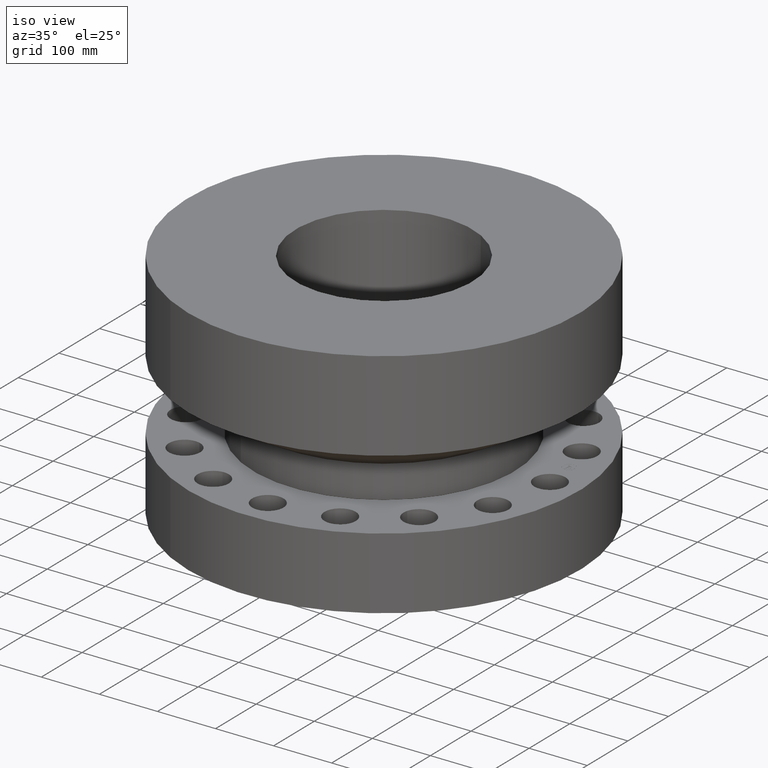
[diagram: clean part render]
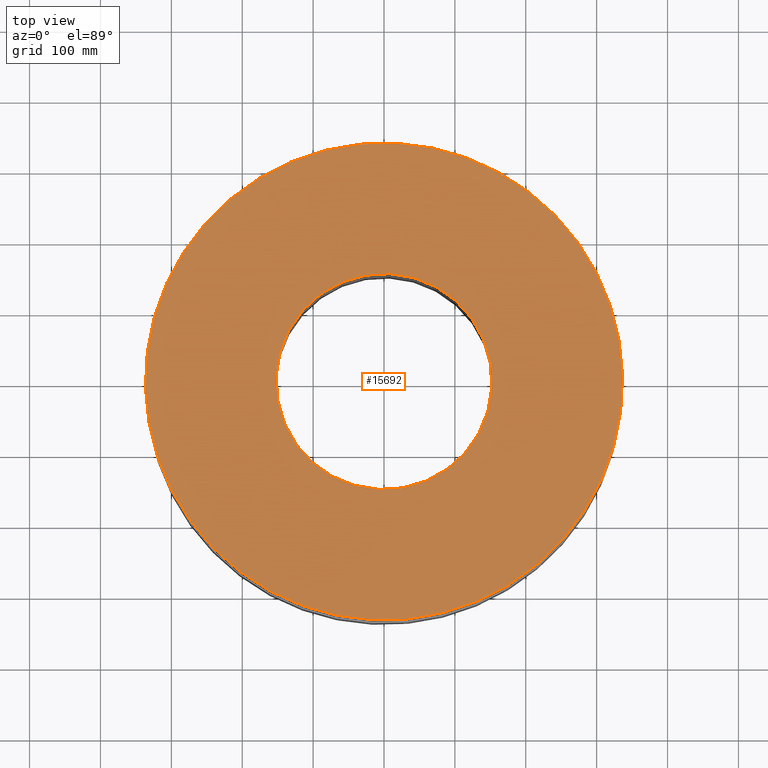
[diagram: tour spotlight — one face highlighted and labeled with its STEP entity id]
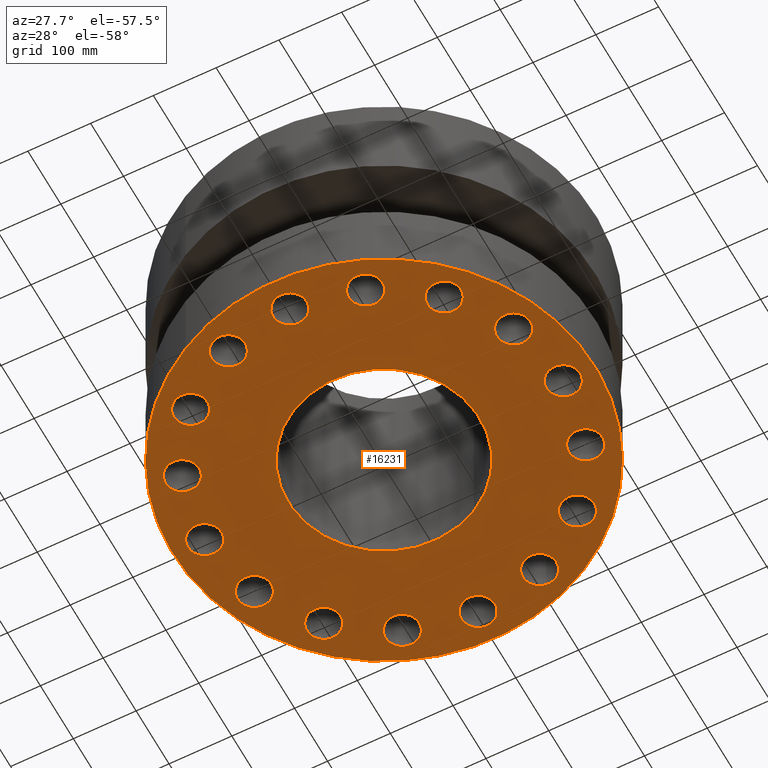
[diagram: tour spotlight — one face highlighted and labeled with its STEP entity id]
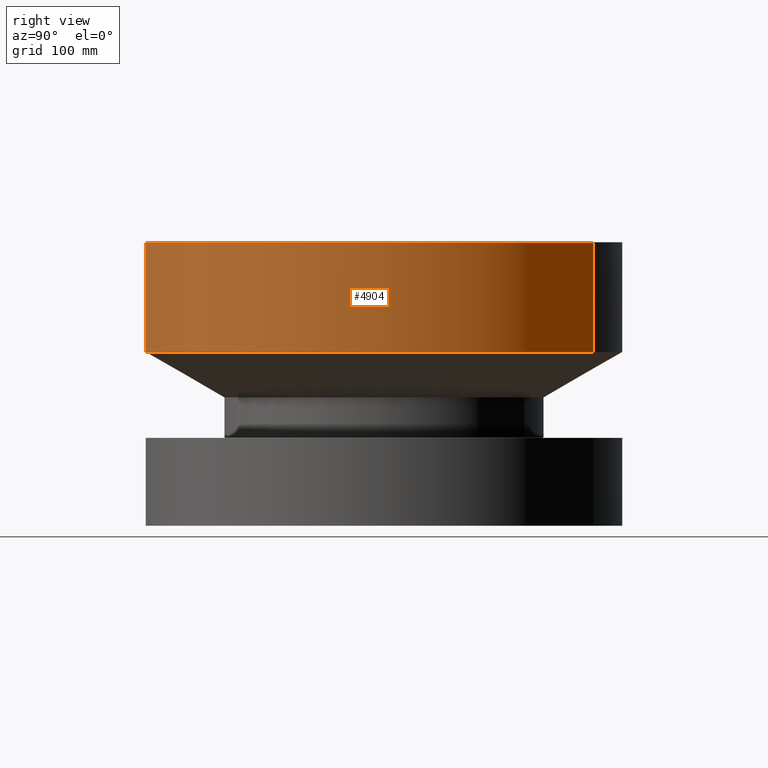
[diagram: tour spotlight — one face highlighted and labeled with its STEP entity id]
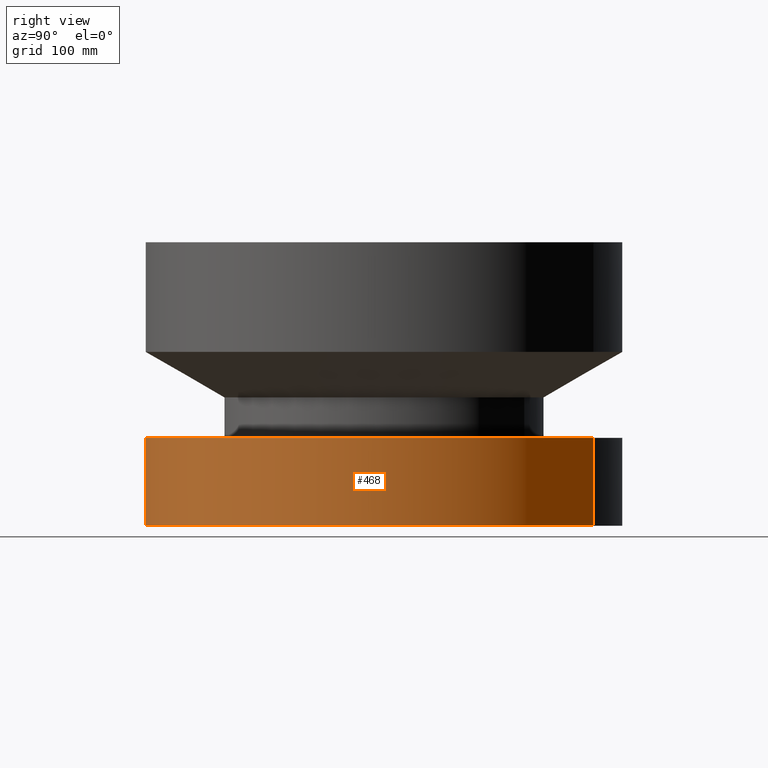
[diagram: tour spotlight — one face highlighted and labeled with its STEP entity id]
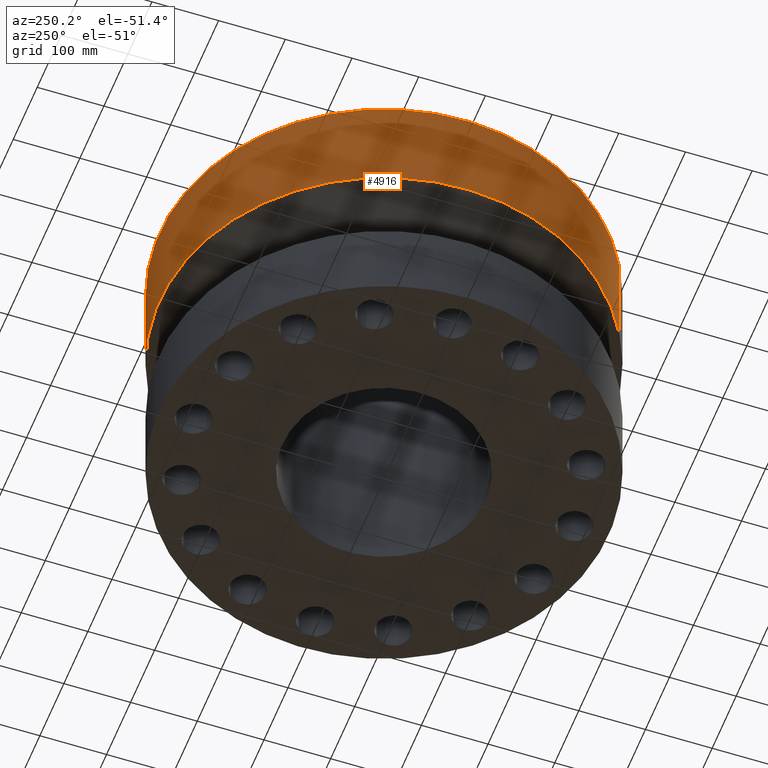
[diagram: tour spotlight — one face highlighted and labeled with its STEP entity id]
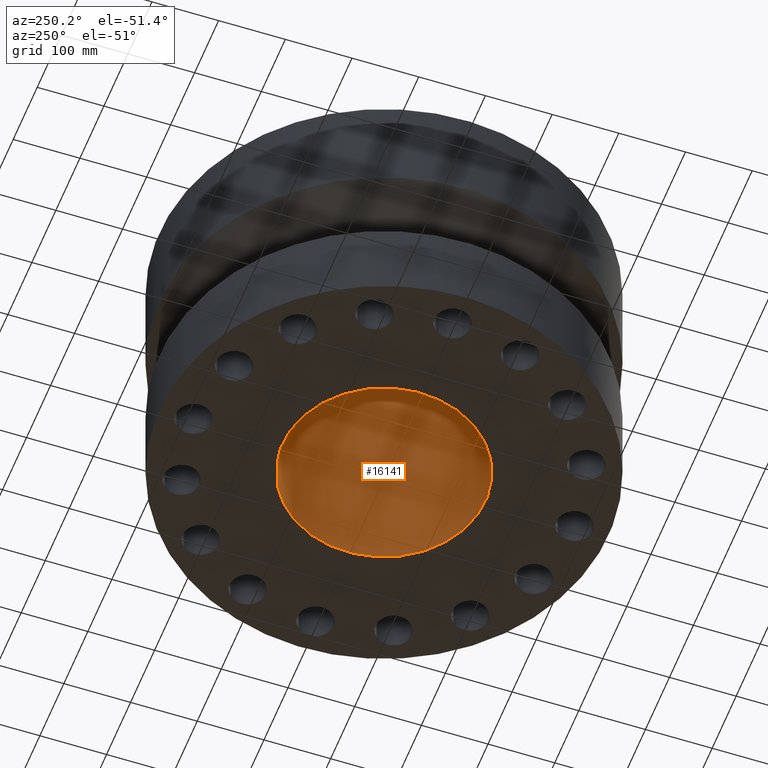
[diagram: tour spotlight — one face highlighted and labeled with its STEP entity id]
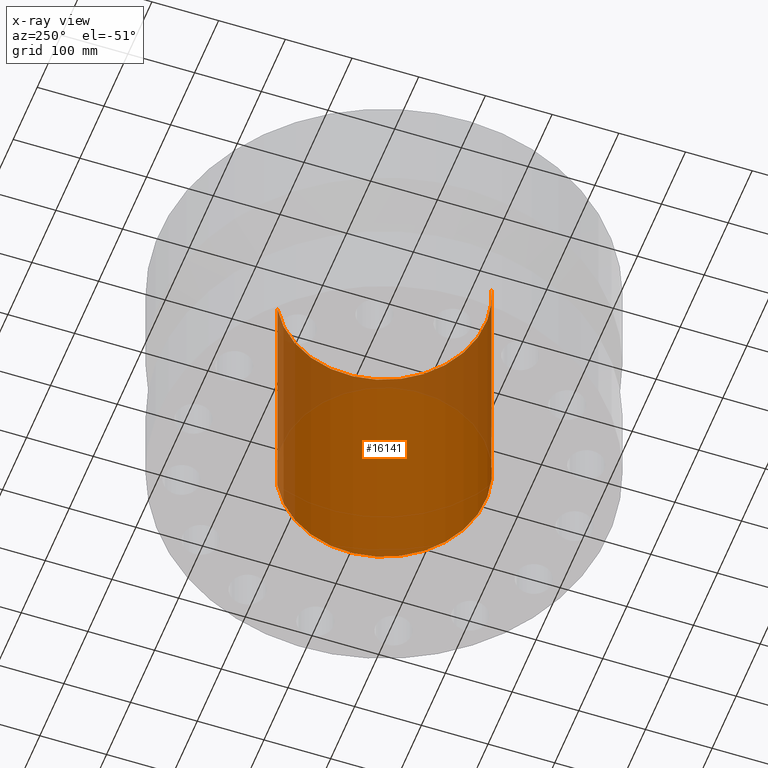
[diagram: x-ray of the same camera — body ghosted, this tour face saturated]
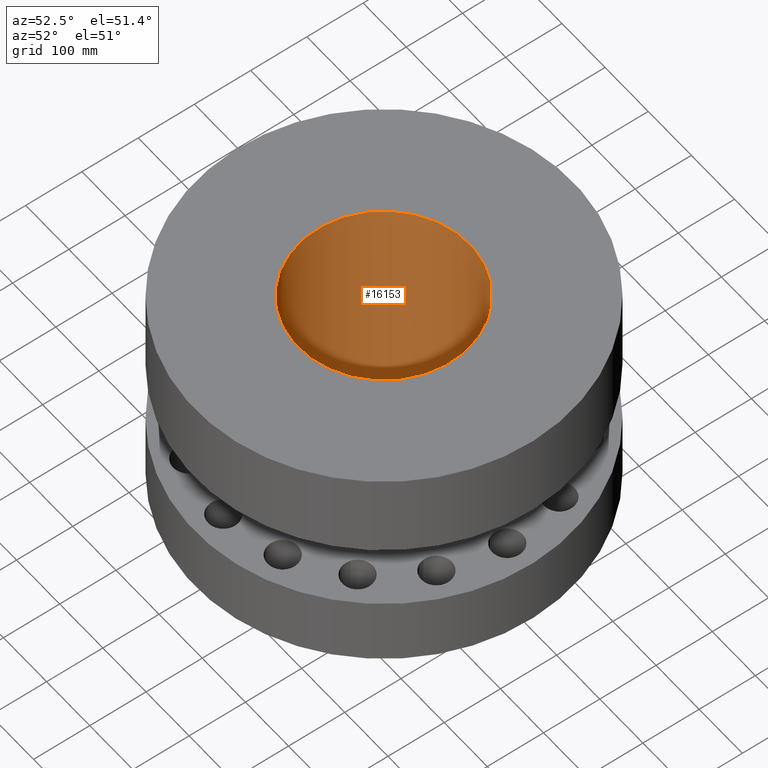
[diagram: tour spotlight — one face highlighted and labeled with its STEP entity id]
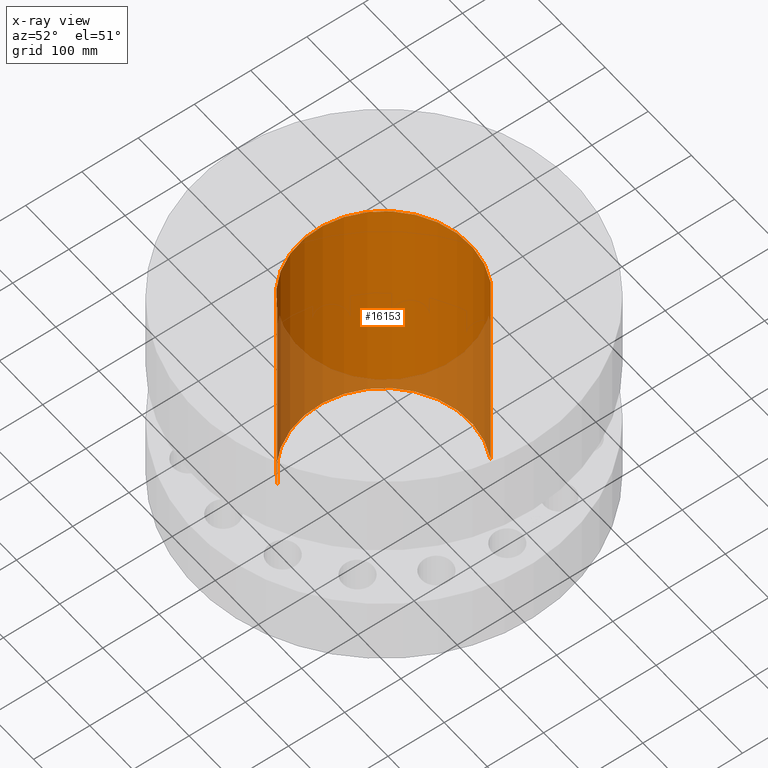
[diagram: x-ray of the same camera — body ghosted, this tour face saturated]
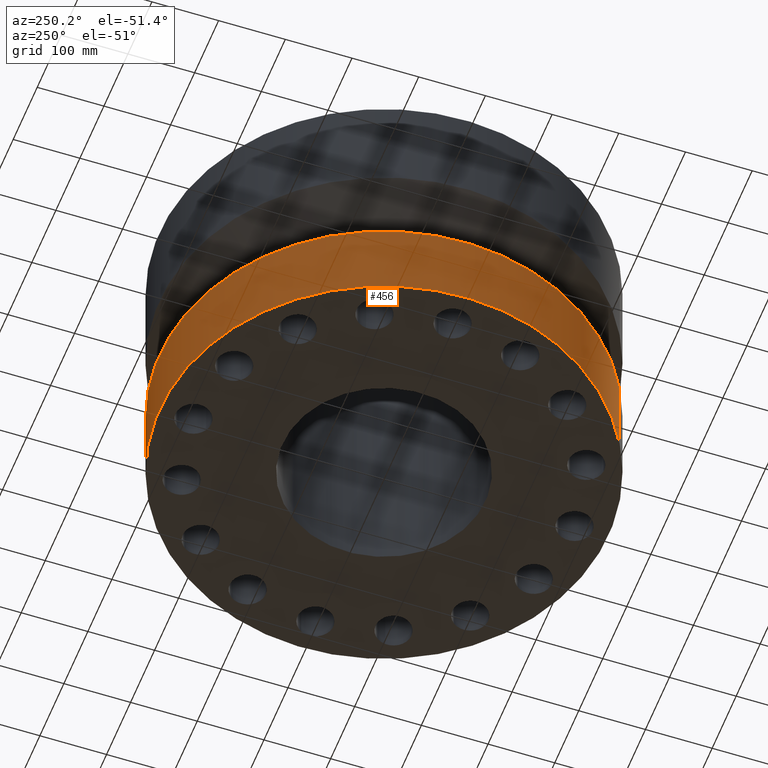
[diagram: tour spotlight — one face highlighted and labeled with its STEP entity id]
A machine part: a face-by-face anatomy tour. The part has 434 B-rep faces; the first image is the clean iso view, then the 8 largest visible faces are spotlighted one at a time (largest first), each with its STEP entity span.

Face 1 — top view, entity #15692. In plain terms, the highlighted planar face has unit normal (0, 0, -1).
Definition (entity closure, byte-faithful):
#4888=AXIS2_PLACEMENT_3D('Circle Axis2P3D',#4886,#4887,$) ;
#4907=AXIS2_PLACEMENT_3D('Circle Axis2P3D',#4905,#4906,$) ;
#15668=AXIS2_PLACEMENT_3D('Plane Axis2P3D',#15665,#15666,#15667) ;
#15676=AXIS2_PLACEMENT_3D('Circle Axis2P3D',#15674,#15675,$) ;
#15685=AXIS2_PLACEMENT_3D('Circle Axis2P3D',#15683,#15684,$) ;
#4883=CARTESIAN_POINT('Vertex',(6.35238838653,11.6279689451,15.7500000001)) ;
#4886=CARTESIAN_POINT('Axis2P3D Location',(0.,0.,15.7500000001)) ;
#4890=CARTESIAN_POINT('Vertex',(-6.35238838653,-11.6279689451,15.7500000001)) ;
#4905=CARTESIAN_POINT('Axis2P3D Location',(0.,0.,15.7500000001)) ;
#15665=CARTESIAN_POINT('Axis2P3D Location',(0.,13.2500000001,15.7500000001)) ;
#15674=CARTESIAN_POINT('Axis2P3D Location',(0.,0.,15.7500000001)) ;
#15678=CARTESIAN_POINT('Vertex',(-2.87655323164,-5.26549537136,15.7500000001)) ;
#15680=CARTESIAN_POINT('Vertex',(2.87655323164,5.26549537136,15.7500000001)) ;
#15683=CARTESIAN_POINT('Axis2P3D Location',(0.,0.,15.7500000001)) ;
#4887=DIRECTION('Axis2P3D Direction',(0.,0.,-0.0393700787402)) ;
#4906=DIRECTION('Axis2P3D Direction',(0.,0.,-0.0393700787402)) ;
#15666=DIRECTION('Axis2P3D Direction',(0.,0.,-0.0393700787402)) ;
#15667=DIRECTION('Axis2P3D XDirection',(0.0393700787402,0.,0.)) ;
#15675=DIRECTION('Axis2P3D Direction',(0.,0.,-0.0393700787402)) ;
#15684=DIRECTION('Axis2P3D Direction',(0.,0.,-0.0393700787402)) ;
#15671=ORIENTED_EDGE('',*,*,#4892,.F.) ;
#15672=ORIENTED_EDGE('',*,*,#4909,.F.) ;
#15689=ORIENTED_EDGE('',*,*,#15682,.T.) ;
#15690=ORIENTED_EDGE('',*,*,#15687,.T.) ;
#15691=FACE_BOUND('',#15688,.T.) ;
#15692=ADVANCED_FACE('PartBody',(#15673,#15691),#15669,.F.) ;
#4889=CIRCLE('generated circle',#4888,13.2500000001) ;
#4908=CIRCLE('generated circle',#4907,13.2500000001) ;
#15677=CIRCLE('generated circle',#15676,6.00000000002) ;
#15686=CIRCLE('generated circle',#15685,6.00000000002) ;
#4892=EDGE_CURVE('',#4884,#4891,#4889,.T.) ;
#4909=EDGE_CURVE('',#4891,#4884,#4908,.T.) ;
#15682=EDGE_CURVE('',#15679,#15681,#15677,.T.) ;
#15687=EDGE_CURVE('',#15681,#15679,#15686,.T.) ;
#15670=EDGE_LOOP('',(#15671,#15672)) ;
#15688=EDGE_LOOP('',(#15689,#15690)) ;
#15673=FACE_OUTER_BOUND('',#15670,.T.) ;
#15669=PLANE('',#15668) ;
#4884=VERTEX_POINT('',#4883) ;
#4891=VERTEX_POINT('',#4890) ;
#15679=VERTEX_POINT('',#15678) ;
#15681=VERTEX_POINT('',#15680) ;

Face 2 — auxiliary view, entity #16231. In plain terms, the highlighted planar face has unit normal (0, 0, 1).
Definition (entity closure, byte-faithful):
#51=AXIS2_PLACEMENT_3D('Circle Axis2P3D',#49,#50,$) ;
#416=AXIS2_PLACEMENT_3D('Circle Axis2P3D',#414,#415,$) ;
#433=AXIS2_PLACEMENT_3D('Circle Axis2P3D',#431,#432,$) ;
#459=AXIS2_PLACEMENT_3D('Circle Axis2P3D',#457,#458,$) ;
#526=AXIS2_PLACEMENT_3D('Circle Axis2P3D',#524,#525,$) ;
#545=AXIS2_PLACEMENT_3D('Circle Axis2P3D',#543,#544,$) ;
#569=AXIS2_PLACEMENT_3D('Circle Axis2P3D',#567,#568,$) ;
#588=AXIS2_PLACEMENT_3D('Circle Axis2P3D',#586,#587,$) ;
#612=AXIS2_PLACEMENT_3D('Circle Axis2P3D',#610,#611,$) ;
#631=AXIS2_PLACEMENT_3D('Circle Axis2P3D',#629,#630,$) ;
#655=AXIS2_PLACEMENT_3D('Circle Axis2P3D',#653,#654,$) ;
#674=AXIS2_PLACEMENT_3D('Circle Axis2P3D',#672,#673,$) ;
#698=AXIS2_PLACEMENT_3D('Circle Axis2P3D',#696,#697,$) ;
#717=AXIS2_PLACEMENT_3D('Circle Axis2P3D',#715,#716,$) ;
#741=AXIS2_PLACEMENT_3D('Circle Axis2P3D',#739,#740,$) ;
#760=AXIS2_PLACEMENT_3D('Circle Axis2P3D',#758,#759,$) ;
#784=AXIS2_PLACEMENT_3D('Circle Axis2P3D',#782,#783,$) ;
#803=AXIS2_PLACEMENT_3D('Circle Axis2P3D',#801,#802,$) ;
#827=AXIS2_PLACEMENT_3D('Circle Axis2P3D',#825,#826,$) ;
#846=AXIS2_PLACEMENT_3D('Circle Axis2P3D',#844,#845,$) ;
#870=AXIS2_PLACEMENT_3D('Circle Axis2P3D',#868,#869,$) ;
#889=AXIS2_PLACEMENT_3D('Circle Axis2P3D',#887,#888,$) ;
#913=AXIS2_PLACEMENT_3D('Circle Axis2P3D',#911,#912,$) ;
#932=AXIS2_PLACEMENT_3D('Circle Axis2P3D',#930,#931,$) ;
#956=AXIS2_PLACEMENT_3D('Circle Axis2P3D',#954,#955,$) ;
#975=AXIS2_PLACEMENT_3D('Circle Axis2P3D',#973,#974,$) ;
#999=AXIS2_PLACEMENT_3D('Circle Axis2P3D',#997,#998,$) ;
#1018=AXIS2_PLACEMENT_3D('Circle Axis2P3D',#1016,#1017,$) ;
#1042=AXIS2_PLACEMENT_3D('Circle Axis2P3D',#1040,#1041,$) ;
#1061=AXIS2_PLACEMENT_3D('Circle Axis2P3D',#1059,#1060,$) ;
#1085=AXIS2_PLACEMENT_3D('Circle Axis2P3D',#1083,#1084,$) ;
#1104=AXIS2_PLACEMENT_3D('Circle Axis2P3D',#1102,#1103,$) ;
#1128=AXIS2_PLACEMENT_3D('Circle Axis2P3D',#1126,#1127,$) ;
#1147=AXIS2_PLACEMENT_3D('Circle Axis2P3D',#1145,#1146,$) ;
#16118=AXIS2_PLACEMENT_3D('Circle Axis2P3D',#16116,#16117,$) ;
#16144=AXIS2_PLACEMENT_3D('Circle Axis2P3D',#16142,#16143,$) ;
#16157=AXIS2_PLACEMENT_3D('Plane Axis2P3D',#16154,#16155,#16156) ;
#46=CARTESIAN_POINT('Vertex',(12.1802375157,0.508191070922,2.2401153548E-016)) ;
#49=CARTESIAN_POINT('Axis2P3D Location',(11.25,0.,0.)) ;
#53=CARTESIAN_POINT('Vertex',(10.3197624844,-0.508191070922,2.2401153548E-016)) ;
#414=CARTESIAN_POINT('Axis2P3D Location',(11.25,0.,0.)) ;
#431=CARTESIAN_POINT('Axis2P3D Location',(0.,0.,0.)) ;
#435=CARTESIAN_POINT('Vertex',(-6.35238838653,-11.6279689451,0.)) ;
#437=CARTESIAN_POINT('Vertex',(6.35238838653,11.6279689451,0.)) ;
#457=CARTESIAN_POINT('Axis2P3D Location',(0.,0.,0.)) ;
#521=CARTESIAN_POINT('Vertex',(11.4475484452,-4.19166777048,2.2401153548E-016)) ;
#524=CARTESIAN_POINT('Axis2P3D Location',(10.3936447408,-4.30518861412,0.)) ;
#528=CARTESIAN_POINT('Vertex',(9.33974103643,-4.41870945777,2.2401153548E-016)) ;
#543=CARTESIAN_POINT('Axis2P3D Location',(10.3936447408,-4.30518861412,0.)) ;
#564=CARTESIAN_POINT('Vertex',(8.97207389617,-8.25338319139,2.2401153548E-016)) ;
#567=CARTESIAN_POINT('Axis2P3D Location',(7.95495128838,-7.95495128838,0.)) ;
#571=CARTESIAN_POINT('Vertex',(6.93782868059,-7.65651938537,2.2401153548E-016)) ;
#586=CARTESIAN_POINT('Axis2P3D Location',(7.95495128838,-7.95495128838,0.)) ;
#607=CARTESIAN_POINT('Vertex',(5.13068242854,-11.0585958385,2.2401153548E-016)) ;
#610=CARTESIAN_POINT('Axis2P3D Location',(4.30518861412,-10.3936447408,0.)) ;
#614=CARTESIAN_POINT('Vertex',(3.47969479971,-9.72869364307,2.2401153548E-016)) ;
#629=CARTESIAN_POINT('Axis2P3D Location',(4.30518861412,-10.3936447408,0.)) ;
#650=CARTESIAN_POINT('Vertex',(0.508191070922,-12.1802375157,2.2401153548E-016)) ;
#653=CARTESIAN_POINT('Axis2P3D Location',(-1.54906605189E-015,-11.25,0.)) ;
#657=CARTESIAN_POINT('Vertex',(-0.508191070922,-10.3197624844,2.2401153548E-016)) ;
#672=CARTESIAN_POINT('Axis2P3D Location',(-1.54906605189E-015,-11.25,0.)) ;
#693=CARTESIAN_POINT('Vertex',(-4.19166777048,-11.4475484452,2.2401153548E-016)) ;
#696=CARTESIAN_POINT('Axis2P3D Location',(-4.30518861412,-10.3936447408,0.)) ;
#700=CARTESIAN_POINT('Vertex',(-4.41870945777,-9.33974103643,2.2401153548E-016)) ;
#715=CARTESIAN_POINT('Axis2P3D Location',(-4.30518861412,-10.3936447408,0.)) ;
#736=CARTESIAN_POINT('Vertex',(-8.25338319139,-8.97207389617,2.2401153548E-016)) ;
#739=CARTESIAN_POINT('Axis2P3D Location',(-7.95495128838,-7.95495128838,0.)) ;
#743=CARTESIAN_POINT('Vertex',(-7.65651938537,-6.93782868059,2.2401153548E-016)) ;
#758=CARTESIAN_POINT('Axis2P3D Location',(-7.95495128838,-7.95495128838,0.)) ;
#779=CARTESIAN_POINT('Vertex',(-11.0585958385,-5.13068242854,2.2401153548E-016)) ;
#782=CARTESIAN_POINT('Axis2P3D Location',(-10.3936447408,-4.30518861412,0.)) ;
#786=CARTESIAN_POINT('Vertex',(-9.72869364307,-3.47969479971,2.2401153548E-016)) ;
#801=CARTESIAN_POINT('Axis2P3D Location',(-10.3936447408,-4.30518861412,0.)) ;
#822=CARTESIAN_POINT('Vertex',(-12.1802375157,-0.508191070922,2.2401153548E-016)) ;
#825=CARTESIAN_POINT('Axis2P3D Location',(-11.25,-1.37772764905E-015,0.)) ;
#829=CARTESIAN_POINT('Vertex',(-10.3197624844,0.508191070922,2.2401153548E-016)) ;
#844=CARTESIAN_POINT('Axis2P3D Location',(-11.25,-1.37772764905E-015,0.)) ;
#865=CARTESIAN_POINT('Vertex',(-11.4475484452,4.19166777048,2.2401153548E-016)) ;
#868=CARTESIAN_POINT('Axis2P3D Location',(-10.3936447408,4.30518861412,0.)) ;
#872=CARTESIAN_POINT('Vertex',(-9.33974103643,4.41870945777,2.2401153548E-016)) ;
#887=CARTESIAN_POINT('Axis2P3D Location',(-10.3936447408,4.30518861412,0.)) ;
#908=CARTESIAN_POINT('Vertex',(-8.97207389617,8.25338319139,2.2401153548E-016)) ;
#911=CARTESIAN_POINT('Axis2P3D Location',(-7.95495128838,7.95495128838,0.)) ;
#915=CARTESIAN_POINT('Vertex',(-6.93782868059,7.65651938537,2.2401153548E-016)) ;
#930=CARTESIAN_POINT('Axis2P3D Location',(-7.95495128838,7.95495128838,0.)) ;
#951=CARTESIAN_POINT('Vertex',(-5.13068242854,11.0585958385,2.2401153548E-016)) ;
#954=CARTESIAN_POINT('Axis2P3D Location',(-4.30518861412,10.3936447408,0.)) ;
#958=CARTESIAN_POINT('Vertex',(-3.47969479971,9.72869364307,2.2401153548E-016)) ;
#973=CARTESIAN_POINT('Axis2P3D Location',(-4.30518861412,10.3936447408,0.)) ;
#994=CARTESIAN_POINT('Vertex',(-0.508191070922,12.1802375157,2.2401153548E-016)) ;
#997=CARTESIAN_POINT('Axis2P3D Location',(-2.06659147357E-015,11.25,0.)) ;
#1001=CARTESIAN_POINT('Vertex',(0.508191070922,10.3197624844,2.2401153548E-016)) ;
#1016=CARTESIAN_POINT('Axis2P3D Location',(-2.06659147357E-015,11.25,0.)) ;
#1037=CARTESIAN_POINT('Vertex',(4.19166777048,11.4475484452,2.22372426684E-016)) ;
#1040=CARTESIAN_POINT('Axis2P3D Location',(4.30518861412,10.3936447408,-3.2782175924E-018)) ;
#1044=CARTESIAN_POINT('Vertex',(4.41870945777,9.33974103643,2.22372426684E-016)) ;
#1059=CARTESIAN_POINT('Axis2P3D Location',(4.30518861412,10.3936447408,-3.2782175924E-018)) ;
#1080=CARTESIAN_POINT('Vertex',(8.25338319139,8.97207389617,2.2401153548E-016)) ;
#1083=CARTESIAN_POINT('Axis2P3D Location',(7.95495128838,7.95495128838,0.)) ;
#1087=CARTESIAN_POINT('Vertex',(7.65651938537,6.93782868059,2.2401153548E-016)) ;
#1102=CARTESIAN_POINT('Axis2P3D Location',(7.95495128838,7.95495128838,0.)) ;
#1123=CARTESIAN_POINT('Vertex',(11.0585958385,5.13068242854,2.2401153548E-016)) ;
#1126=CARTESIAN_POINT('Axis2P3D Location',(10.3936447408,4.30518861412,0.)) ;
#1130=CARTESIAN_POINT('Vertex',(9.72869364307,3.47969479971,2.2401153548E-016)) ;
#1145=CARTESIAN_POINT('Axis2P3D Location',(10.3936447408,4.30518861412,0.)) ;
#16116=CARTESIAN_POINT('Axis2P3D Location',(0.,0.,0.)) ;
#16120=CARTESIAN_POINT('Vertex',(-2.87655323164,-5.26549537136,0.)) ;
#16122=CARTESIAN_POINT('Vertex',(2.87655323164,5.26549537136,0.)) ;
#16142=CARTESIAN_POINT('Axis2P3D Location',(0.,0.,0.)) ;
#16154=CARTESIAN_POINT('Axis2P3D Location',(0.,0.,0.)) ;
#50=DIRECTION('Axis2P3D Direction',(0.,-0.,0.0393700787402)) ;
#415=DIRECTION('Axis2P3D Direction',(0.,-0.,0.0393700787402)) ;
#432=DIRECTION('Axis2P3D Direction',(0.,0.,-0.0393700787402)) ;
#458=DIRECTION('Axis2P3D Direction',(0.,0.,-0.0393700787402)) ;
#525=DIRECTION('Axis2P3D Direction',(-0.,0.,0.0393700787402)) ;
#544=DIRECTION('Axis2P3D Direction',(-0.,0.,0.0393700787402)) ;
#568=DIRECTION('Axis2P3D Direction',(-0.,0.,0.0393700787402)) ;
#587=DIRECTION('Axis2P3D Direction',(-0.,0.,0.0393700787402)) ;
#611=DIRECTION('Axis2P3D Direction',(-0.,0.,0.0393700787402)) ;
#630=DIRECTION('Axis2P3D Direction',(-0.,0.,0.0393700787402)) ;
#654=DIRECTION('Axis2P3D Direction',(-0.,0.,0.0393700787402)) ;
#673=DIRECTION('Axis2P3D Direction',(-0.,0.,0.0393700787402)) ;
#697=DIRECTION('Axis2P3D Direction',(0.,0.,0.0393700787402)) ;
#716=DIRECTION('Axis2P3D Direction',(0.,0.,0.0393700787402)) ;
#740=DIRECTION('Axis2P3D Direction',(0.,0.,0.0393700787402)) ;
#759=DIRECTION('Axis2P3D Direction',(0.,0.,0.0393700787402)) ;
#783=DIRECTION('Axis2P3D Direction',(0.,0.,0.0393700787402)) ;
#802=DIRECTION('Axis2P3D Direction',(0.,0.,0.0393700787402)) ;
#826=DIRECTION('Axis2P3D Direction',(0.,0.,0.0393700787402)) ;
#845=DIRECTION('Axis2P3D Direction',(0.,0.,0.0393700787402)) ;
#869=DIRECTION('Axis2P3D Direction',(0.,0.,0.0393700787402)) ;
#888=DIRECTION('Axis2P3D Direction',(0.,0.,0.0393700787402)) ;
#912=DIRECTION('Axis2P3D Direction',(0.,0.,0.0393700787402)) ;
#931=DIRECTION('Axis2P3D Direction',(0.,0.,0.0393700787402)) ;
#955=DIRECTION('Axis2P3D Direction',(0.,0.,0.0393700787402)) ;
#974=DIRECTION('Axis2P3D Direction',(0.,0.,0.0393700787402)) ;
#998=DIRECTION('Axis2P3D Direction',(0.,0.,0.0393700787402)) ;
#1017=DIRECTION('Axis2P3D Direction',(0.,0.,0.0393700787402)) ;
#1041=DIRECTION('Axis2P3D Direction',(0.,-0.,0.0393700787402)) ;
#1060=DIRECTION('Axis2P3D Direction',(0.,-0.,0.0393700787402)) ;
#1084=DIRECTION('Axis2P3D Direction',(0.,-0.,0.0393700787402)) ;
#1103=DIRECTION('Axis2P3D Direction',(0.,-0.,0.0393700787402)) ;
#1127=DIRECTION('Axis2P3D Direction',(0.,-0.,0.0393700787402)) ;
#1146=DIRECTION('Axis2P3D Direction',(0.,-0.,0.0393700787402)) ;
#16117=DIRECTION('Axis2P3D Direction',(0.,0.,-0.0393700787402)) ;
#16143=DIRECTION('Axis2P3D Direction',(0.,0.,-0.0393700787402)) ;
#16155=DIRECTION('Axis2P3D Direction',(0.,0.,0.0393700787402)) ;
#16156=DIRECTION('Axis2P3D XDirection',(0.0393700787402,0.,0.)) ;
#16160=ORIENTED_EDGE('',*,*,#461,.T.) ;
#16161=ORIENTED_EDGE('',*,*,#439,.T.) ;
#16164=ORIENTED_EDGE('',*,*,#1132,.F.) ;
#16165=ORIENTED_EDGE('',*,*,#1149,.F.) ;
#16168=ORIENTED_EDGE('',*,*,#1089,.F.) ;
#16169=ORIENTED_EDGE('',*,*,#1106,.F.) ;
#16172=ORIENTED_EDGE('',*,*,#1046,.F.) ;
#16173=ORIENTED_EDGE('',*,*,#1063,.F.) ;
#16176=ORIENTED_EDGE('',*,*,#1003,.F.) ;
#16177=ORIENTED_EDGE('',*,*,#1020,.F.) ;
#16180=ORIENTED_EDGE('',*,*,#960,.F.) ;
#16181=ORIENTED_EDGE('',*,*,#977,.F.) ;
#16184=ORIENTED_EDGE('',*,*,#917,.F.) ;
#16185=ORIENTED_EDGE('',*,*,#934,.F.) ;
#16188=ORIENTED_EDGE('',*,*,#874,.F.) ;
#16189=ORIENTED_EDGE('',*,*,#891,.F.) ;
#16192=ORIENTED_EDGE('',*,*,#831,.F.) ;
#16193=ORIENTED_EDGE('',*,*,#848,.F.) ;
#16196=ORIENTED_EDGE('',*,*,#788,.F.) ;
#16197=ORIENTED_EDGE('',*,*,#805,.F.) ;
#16200=ORIENTED_EDGE('',*,*,#745,.F.) ;
#16201=ORIENTED_EDGE('',*,*,#762,.F.) ;
#16204=ORIENTED_EDGE('',*,*,#702,.F.) ;
#16205=ORIENTED_EDGE('',*,*,#719,.F.) ;
#16208=ORIENTED_EDGE('',*,*,#659,.F.) ;
#16209=ORIENTED_EDGE('',*,*,#676,.F.) ;
#16212=ORIENTED_EDGE('',*,*,#616,.F.) ;
#16213=ORIENTED_EDGE('',*,*,#633,.F.) ;
#16216=ORIENTED_EDGE('',*,*,#573,.F.) ;
#16217=ORIENTED_EDGE('',*,*,#590,.F.) ;
#16220=ORIENTED_EDGE('',*,*,#530,.F.) ;
#16221=ORIENTED_EDGE('',*,*,#547,.F.) ;
#16224=ORIENTED_EDGE('',*,*,#418,.F.) ;
#16225=ORIENTED_EDGE('',*,*,#55,.F.) ;
#16228=ORIENTED_EDGE('',*,*,#16146,.T.) ;
#16229=ORIENTED_EDGE('',*,*,#16124,.T.) ;
#16166=FACE_BOUND('',#16163,.T.) ;
#16170=FACE_BOUND('',#16167,.T.) ;
#16174=FACE_BOUND('',#16171,.T.) ;
#16178=FACE_BOUND('',#16175,.T.) ;
#16182=FACE_BOUND('',#16179,.T.) ;
#16186=FACE_BOUND('',#16183,.T.) ;
#16190=FACE_BOUND('',#16187,.T.) ;
#16194=FACE_BOUND('',#16191,.T.) ;
#16198=FACE_BOUND('',#16195,.T.) ;
#16202=FACE_BOUND('',#16199,.T.) ;
#16206=FACE_BOUND('',#16203,.T.) ;
#16210=FACE_BOUND('',#16207,.T.) ;
#16214=FACE_BOUND('',#16211,.T.) ;
#16218=FACE_BOUND('',#16215,.T.) ;
#16222=FACE_BOUND('',#16219,.T.) ;
#16226=FACE_BOUND('',#16223,.T.) ;
#16230=FACE_BOUND('',#16227,.T.) ;
#16231=ADVANCED_FACE('PartBody',(#16162,#16166,#16170,#16174,#16178,#16182,#16186,#16190,#16194,#16198,#16202,#16206,#16210,#16214,#16218,#16222,#16226,#16230),#16158,.F.) ;
#52=CIRCLE('generated circle',#51,1.06) ;
#417=CIRCLE('generated circle',#416,1.06) ;
#434=CIRCLE('generated circle',#433,13.2500000001) ;
#460=CIRCLE('generated circle',#459,13.2500000001) ;
#527=CIRCLE('generated circle',#526,1.06) ;
#546=CIRCLE('generated circle',#545,1.06) ;
#570=CIRCLE('generated circle',#569,1.06) ;
#589=CIRCLE('generated circle',#588,1.06) ;
#613=CIRCLE('generated circle',#612,1.06) ;
#632=CIRCLE('generated circle',#631,1.06) ;
#656=CIRCLE('generated circle',#655,1.06) ;
#675=CIRCLE('generated circle',#674,1.06) ;
#699=CIRCLE('generated circle',#698,1.06) ;
#718=CIRCLE('generated circle',#717,1.06) ;
#742=CIRCLE('generated circle',#741,1.06) ;
#761=CIRCLE('generated circle',#760,1.06) ;
#785=CIRCLE('generated circle',#784,1.06) ;
#804=CIRCLE('generated circle',#803,1.06) ;
#828=CIRCLE('generated circle',#827,1.06) ;
#847=CIRCLE('generated circle',#846,1.06) ;
#871=CIRCLE('generated circle',#870,1.06) ;
#890=CIRCLE('generated circle',#889,1.06) ;
#914=CIRCLE('generated circle',#913,1.06) ;
#933=CIRCLE('generated circle',#932,1.06) ;
#957=CIRCLE('generated circle',#956,1.06) ;
#976=CIRCLE('generated circle',#975,1.06) ;
#1000=CIRCLE('generated circle',#999,1.06) ;
#1019=CIRCLE('generated circle',#1018,1.06) ;
#1043=CIRCLE('generated circle',#1042,1.06) ;
#1062=CIRCLE('generated circle',#1061,1.06) ;
#1086=CIRCLE('generated circle',#1085,1.06) ;
#1105=CIRCLE('generated circle',#1104,1.06) ;
#1129=CIRCLE('generated circle',#1128,1.06) ;
#1148=CIRCLE('generated circle',#1147,1.06) ;
#16119=CIRCLE('generated circle',#16118,6.00000000002) ;
#16145=CIRCLE('generated circle',#16144,6.00000000002) ;
#55=EDGE_CURVE('',#47,#54,#52,.F.) ;
#418=EDGE_CURVE('',#54,#47,#417,.F.) ;
#439=EDGE_CURVE('',#436,#438,#434,.T.) ;
#461=EDGE_CURVE('',#438,#436,#460,.T.) ;
#530=EDGE_CURVE('',#522,#529,#527,.F.) ;
#547=EDGE_CURVE('',#529,#522,#546,.F.) ;
#573=EDGE_CURVE('',#565,#572,#570,.F.) ;
#590=EDGE_CURVE('',#572,#565,#589,.F.) ;
#616=EDGE_CURVE('',#608,#615,#613,.F.) ;
#633=EDGE_CURVE('',#615,#608,#632,.F.) ;
#659=EDGE_CURVE('',#651,#658,#656,.F.) ;
#676=EDGE_CURVE('',#658,#651,#675,.F.) ;
#702=EDGE_CURVE('',#694,#701,#699,.F.) ;
#719=EDGE_CURVE('',#701,#694,#718,.F.) ;
#745=EDGE_CURVE('',#737,#744,#742,.F.) ;
#762=EDGE_CURVE('',#744,#737,#761,.F.) ;
#788=EDGE_CURVE('',#780,#787,#785,.F.) ;
#805=EDGE_CURVE('',#787,#780,#804,.F.) ;
#831=EDGE_CURVE('',#823,#830,#828,.F.) ;
#848=EDGE_CURVE('',#830,#823,#847,.F.) ;
#874=EDGE_CURVE('',#866,#873,#871,.F.) ;
#891=EDGE_CURVE('',#873,#866,#890,.F.) ;
#917=EDGE_CURVE('',#909,#916,#914,.F.) ;
#934=EDGE_CURVE('',#916,#909,#933,.F.) ;
#960=EDGE_CURVE('',#952,#959,#957,.F.) ;
#977=EDGE_CURVE('',#959,#952,#976,.F.) ;
#1003=EDGE_CURVE('',#995,#1002,#1000,.F.) ;
#1020=EDGE_CURVE('',#1002,#995,#1019,.F.) ;
#1046=EDGE_CURVE('',#1038,#1045,#1043,.F.) ;
#1063=EDGE_CURVE('',#1045,#1038,#1062,.F.) ;
#1089=EDGE_CURVE('',#1081,#1088,#1086,.F.) ;
#1106=EDGE_CURVE('',#1088,#1081,#1105,.F.) ;
#1132=EDGE_CURVE('',#1124,#1131,#1129,.F.) ;
#1149=EDGE_CURVE('',#1131,#1124,#1148,.F.) ;
#16124=EDGE_CURVE('',#16121,#16123,#16119,.F.) ;
#16146=EDGE_CURVE('',#16123,#16121,#16145,.F.) ;
#16159=EDGE_LOOP('',(#16160,#16161)) ;
#16163=EDGE_LOOP('',(#16164,#16165)) ;
#16167=EDGE_LOOP('',(#16168,#16169)) ;
#16171=EDGE_LOOP('',(#16172,#16173)) ;
#16175=EDGE_LOOP('',(#16176,#16177)) ;
#16179=EDGE_LOOP('',(#16180,#16181)) ;
#16183=EDGE_LOOP('',(#16184,#16185)) ;
#16187=EDGE_LOOP('',(#16188,#16189)) ;
#16191=EDGE_LOOP('',(#16192,#16193)) ;
#16195=EDGE_LOOP('',(#16196,#16197)) ;
#16199=EDGE_LOOP('',(#16200,#16201)) ;
#16203=EDGE_LOOP('',(#16204,#16205)) ;
#16207=EDGE_LOOP('',(#16208,#16209)) ;
#16211=EDGE_LOOP('',(#16212,#16213)) ;
#16215=EDGE_LOOP('',(#16216,#16217)) ;
#16219=EDGE_LOOP('',(#16220,#16221)) ;
#16223=EDGE_LOOP('',(#16224,#16225)) ;
#16227=EDGE_LOOP('',(#16228,#16229)) ;
#16162=FACE_OUTER_BOUND('',#16159,.T.) ;
#16158=PLANE('',#16157) ;
#47=VERTEX_POINT('',#46) ;
#54=VERTEX_POINT('',#53) ;
#436=VERTEX_POINT('',#435) ;
#438=VERTEX_POINT('',#437) ;
#522=VERTEX_POINT('',#521) ;
#529=VERTEX_POINT('',#528) ;
#565=VERTEX_POINT('',#564) ;
#572=VERTEX_POINT('',#571) ;
#608=VERTEX_POINT('',#607) ;
#615=VERTEX_POINT('',#614) ;
#651=VERTEX_POINT('',#650) ;
#658=VERTEX_POINT('',#657) ;
#694=VERTEX_POINT('',#693) ;
#701=VERTEX_POINT('',#700) ;
#737=VERTEX_POINT('',#736) ;
#744=VERTEX_POINT('',#743) ;
#780=VERTEX_POINT('',#779) ;
#787=VERTEX_POINT('',#786) ;
#823=VERTEX_POINT('',#822) ;
#830=VERTEX_POINT('',#829) ;
#866=VERTEX_POINT('',#865) ;
#873=VERTEX_POINT('',#872) ;
#909=VERTEX_POINT('',#908) ;
#916=VERTEX_POINT('',#915) ;
#952=VERTEX_POINT('',#951) ;
#959=VERTEX_POINT('',#958) ;
#995=VERTEX_POINT('',#994) ;
#1002=VERTEX_POINT('',#1001) ;
#1038=VERTEX_POINT('',#1037) ;
#1045=VERTEX_POINT('',#1044) ;
#1081=VERTEX_POINT('',#1080) ;
#1088=VERTEX_POINT('',#1087) ;
#1124=VERTEX_POINT('',#1123) ;
#1131=VERTEX_POINT('',#1130) ;
#16121=VERTEX_POINT('',#16120) ;
#16123=VERTEX_POINT('',#16122) ;

Face 3 — right view, entity #4904. In plain terms, the highlighted cylindrical surface (partial cylindrical patch) has radius 336.55 mm, axis along (0, 0, -1).
Definition (entity closure, byte-faithful):
#429=AXIS2_PLACEMENT_3D('Cylinder Axis2P3D',#426,#427,#428) ;
#2007=AXIS2_PLACEMENT_3D('Circle Axis2P3D',#2005,#2006,$) ;
#4888=AXIS2_PLACEMENT_3D('Circle Axis2P3D',#4886,#4887,$) ;
#426=CARTESIAN_POINT('Axis2P3D Location',(0.,0.,7.75000000003)) ;
#2002=CARTESIAN_POINT('Vertex',(6.35238838653,11.6279689451,9.65590742774)) ;
#2005=CARTESIAN_POINT('Axis2P3D Location',(0.,0.,9.65590742774)) ;
#2009=CARTESIAN_POINT('Vertex',(-6.35238838653,-11.6279689451,9.65590742774)) ;
#4879=CARTESIAN_POINT('Line Origine',(6.35238838653,11.6279689451,12.7029537139)) ;
#4883=CARTESIAN_POINT('Vertex',(6.35238838653,11.6279689451,15.7500000001)) ;
#4886=CARTESIAN_POINT('Axis2P3D Location',(0.,0.,15.7500000001)) ;
#4890=CARTESIAN_POINT('Vertex',(-6.35238838653,-11.6279689451,15.7500000001)) ;
#4893=CARTESIAN_POINT('Line Origine',(-6.35238838653,-11.6279689451,12.7029537139)) ;
#427=DIRECTION('Axis2P3D Direction',(0.,0.,-0.0393700787402)) ;
#428=DIRECTION('Axis2P3D XDirection',(-0.0188750212049,-0.0345504945626,0.)) ;
#2006=DIRECTION('Axis2P3D Direction',(-0.,0.,0.0393700787402)) ;
#4880=DIRECTION('Vector Direction',(0.,0.,-0.0393700787402)) ;
#4887=DIRECTION('Axis2P3D Direction',(0.,0.,-0.0393700787402)) ;
#4894=DIRECTION('Vector Direction',(0.,0.,-0.0393700787402)) ;
#4881=VECTOR('Line Direction',#4880,0.0393700787402) ;
#4895=VECTOR('Line Direction',#4894,0.0393700787402) ;
#4899=ORIENTED_EDGE('',*,*,#2011,.F.) ;
#4900=ORIENTED_EDGE('',*,*,#4885,.T.) ;
#4901=ORIENTED_EDGE('',*,*,#4892,.T.) ;
#4902=ORIENTED_EDGE('',*,*,#4897,.F.) ;
#4904=ADVANCED_FACE('PartBody',(#4903),#430,.T.) ;
#2008=CIRCLE('generated circle',#2007,13.2500000001) ;
#4889=CIRCLE('generated circle',#4888,13.2500000001) ;
#430=CYLINDRICAL_SURFACE('generated cylinder',#429,13.2500000001) ;
#2011=EDGE_CURVE('',#2003,#2010,#2008,.F.) ;
#4885=EDGE_CURVE('',#2003,#4884,#4882,.F.) ;
#4892=EDGE_CURVE('',#4884,#4891,#4889,.T.) ;
#4897=EDGE_CURVE('',#2010,#4891,#4896,.F.) ;
#4898=EDGE_LOOP('',(#4899,#4900,#4901,#4902)) ;
#4903=FACE_OUTER_BOUND('',#4898,.T.) ;
#4882=LINE('Line',#4879,#4881) ;
#4896=LINE('Line',#4893,#4895) ;
#2003=VERTEX_POINT('',#2002) ;
#2010=VERTEX_POINT('',#2009) ;
#4884=VERTEX_POINT('',#4883) ;
#4891=VERTEX_POINT('',#4890) ;

Face 4 — right view, entity #468. In plain terms, the highlighted cylindrical surface (partial cylindrical patch) has radius 336.55 mm, axis along (0, 0, -1).
Definition (entity closure, byte-faithful):
#82=AXIS2_PLACEMENT_3D('Circle Axis2P3D',#80,#81,$) ;
#429=AXIS2_PLACEMENT_3D('Cylinder Axis2P3D',#426,#427,#428) ;
#459=AXIS2_PLACEMENT_3D('Circle Axis2P3D',#457,#458,$) ;
#80=CARTESIAN_POINT('Axis2P3D Location',(0.,0.,4.88000000002)) ;
#84=CARTESIAN_POINT('Vertex',(6.35238838653,11.6279689451,4.88000000002)) ;
#86=CARTESIAN_POINT('Vertex',(-6.35238838653,-11.6279689451,4.88000000002)) ;
#426=CARTESIAN_POINT('Axis2P3D Location',(0.,0.,7.75000000003)) ;
#435=CARTESIAN_POINT('Vertex',(-6.35238838653,-11.6279689451,0.)) ;
#437=CARTESIAN_POINT('Vertex',(6.35238838653,11.6279689451,0.)) ;
#440=CARTESIAN_POINT('Line Origine',(-6.35238838653,-11.6279689451,12.7029537139)) ;
#445=CARTESIAN_POINT('Line Origine',(6.35238838653,11.6279689451,12.7029537139)) ;
#457=CARTESIAN_POINT('Axis2P3D Location',(0.,0.,0.)) ;
#81=DIRECTION('Axis2P3D Direction',(0.,0.,-0.0393700787402)) ;
#427=DIRECTION('Axis2P3D Direction',(0.,0.,-0.0393700787402)) ;
#428=DIRECTION('Axis2P3D XDirection',(-0.0188750212049,-0.0345504945626,0.)) ;
#441=DIRECTION('Vector Direction',(0.,0.,-0.0393700787402)) ;
#446=DIRECTION('Vector Direction',(0.,0.,-0.0393700787402)) ;
#458=DIRECTION('Axis2P3D Direction',(0.,0.,-0.0393700787402)) ;
#442=VECTOR('Line Direction',#441,0.0393700787402) ;
#447=VECTOR('Line Direction',#446,0.0393700787402) ;
#463=ORIENTED_EDGE('',*,*,#461,.F.) ;
#464=ORIENTED_EDGE('',*,*,#449,.T.) ;
#465=ORIENTED_EDGE('',*,*,#88,.T.) ;
#466=ORIENTED_EDGE('',*,*,#444,.F.) ;
#468=ADVANCED_FACE('PartBody',(#467),#430,.T.) ;
#83=CIRCLE('generated circle',#82,13.2500000001) ;
#460=CIRCLE('generated circle',#459,13.2500000001) ;
#430=CYLINDRICAL_SURFACE('generated cylinder',#429,13.2500000001) ;
#88=EDGE_CURVE('',#85,#87,#83,.T.) ;
#444=EDGE_CURVE('',#436,#87,#443,.F.) ;
#449=EDGE_CURVE('',#438,#85,#448,.F.) ;
#461=EDGE_CURVE('',#438,#436,#460,.T.) ;
#462=EDGE_LOOP('',(#463,#464,#465,#466)) ;
#467=FACE_OUTER_BOUND('',#462,.T.) ;
#443=LINE('Line',#440,#442) ;
#448=LINE('Line',#445,#447) ;
#85=VERTEX_POINT('',#84) ;
#87=VERTEX_POINT('',#86) ;
#436=VERTEX_POINT('',#435) ;
#438=VERTEX_POINT('',#437) ;

Face 5 — auxiliary view, entity #4916. In plain terms, the highlighted cylindrical surface (partial cylindrical patch) has radius 336.55 mm, axis along (0, 0, -1).
Definition (entity closure, byte-faithful):
#429=AXIS2_PLACEMENT_3D('Cylinder Axis2P3D',#426,#427,#428) ;
#2026=AXIS2_PLACEMENT_3D('Circle Axis2P3D',#2024,#2025,$) ;
#4907=AXIS2_PLACEMENT_3D('Circle Axis2P3D',#4905,#4906,$) ;
#426=CARTESIAN_POINT('Axis2P3D Location',(0.,0.,7.75000000003)) ;
#2002=CARTESIAN_POINT('Vertex',(6.35238838653,11.6279689451,9.65590742774)) ;
#2009=CARTESIAN_POINT('Vertex',(-6.35238838653,-11.6279689451,9.65590742774)) ;
#2024=CARTESIAN_POINT('Axis2P3D Location',(0.,0.,9.65590742774)) ;
#4879=CARTESIAN_POINT('Line Origine',(6.35238838653,11.6279689451,12.7029537139)) ;
#4883=CARTESIAN_POINT('Vertex',(6.35238838653,11.6279689451,15.7500000001)) ;
#4890=CARTESIAN_POINT('Vertex',(-6.35238838653,-11.6279689451,15.7500000001)) ;
#4893=CARTESIAN_POINT('Line Origine',(-6.35238838653,-11.6279689451,12.7029537139)) ;
#4905=CARTESIAN_POINT('Axis2P3D Location',(0.,0.,15.7500000001)) ;
#427=DIRECTION('Axis2P3D Direction',(0.,0.,-0.0393700787402)) ;
#428=DIRECTION('Axis2P3D XDirection',(-0.0188750212049,-0.0345504945626,0.)) ;
#2025=DIRECTION('Axis2P3D Direction',(-0.,0.,0.0393700787402)) ;
#4880=DIRECTION('Vector Direction',(0.,0.,-0.0393700787402)) ;
#4894=DIRECTION('Vector Direction',(0.,0.,-0.0393700787402)) ;
#4906=DIRECTION('Axis2P3D Direction',(0.,0.,-0.0393700787402)) ;
#4881=VECTOR('Line Direction',#4880,0.0393700787402) ;
#4895=VECTOR('Line Direction',#4894,0.0393700787402) ;
#4911=ORIENTED_EDGE('',*,*,#2028,.F.) ;
#4912=ORIENTED_EDGE('',*,*,#4897,.T.) ;
#4913=ORIENTED_EDGE('',*,*,#4909,.T.) ;
#4914=ORIENTED_EDGE('',*,*,#4885,.F.) ;
#4916=ADVANCED_FACE('PartBody',(#4915),#430,.T.) ;
#2027=CIRCLE('generated circle',#2026,13.2500000001) ;
#4908=CIRCLE('generated circle',#4907,13.2500000001) ;
#430=CYLINDRICAL_SURFACE('generated cylinder',#429,13.2500000001) ;
#2028=EDGE_CURVE('',#2010,#2003,#2027,.F.) ;
#4885=EDGE_CURVE('',#2003,#4884,#4882,.F.) ;
#4897=EDGE_CURVE('',#2010,#4891,#4896,.F.) ;
#4909=EDGE_CURVE('',#4891,#4884,#4908,.T.) ;
#4910=EDGE_LOOP('',(#4911,#4912,#4913,#4914)) ;
#4915=FACE_OUTER_BOUND('',#4910,.T.) ;
#4882=LINE('Line',#4879,#4881) ;
#4896=LINE('Line',#4893,#4895) ;
#2003=VERTEX_POINT('',#2002) ;
#2010=VERTEX_POINT('',#2009) ;
#4884=VERTEX_POINT('',#4883) ;
#4891=VERTEX_POINT('',#4890) ;

Face 6 — auxiliary view, entity #16141. An x-ray twin of the same camera follows (body ghosted, this face saturated) — the face is partly hidden behind the body. In plain terms, the highlighted cylindrical surface (partial cylindrical patch) has radius 152.4 mm, axis along (0, 0, -1).
Definition (entity closure, byte-faithful):
#15685=AXIS2_PLACEMENT_3D('Circle Axis2P3D',#15683,#15684,$) ;
#16114=AXIS2_PLACEMENT_3D('Cylinder Axis2P3D',#16111,#16112,#16113) ;
#16118=AXIS2_PLACEMENT_3D('Circle Axis2P3D',#16116,#16117,$) ;
#15678=CARTESIAN_POINT('Vertex',(-2.87655323164,-5.26549537136,15.7500000001)) ;
#15680=CARTESIAN_POINT('Vertex',(2.87655323164,5.26549537136,15.7500000001)) ;
#15683=CARTESIAN_POINT('Axis2P3D Location',(0.,0.,15.7500000001)) ;
#16111=CARTESIAN_POINT('Axis2P3D Location',(0.,0.,7.75000000003)) ;
#16116=CARTESIAN_POINT('Axis2P3D Location',(0.,0.,0.)) ;
#16120=CARTESIAN_POINT('Vertex',(-2.87655323164,-5.26549537136,0.)) ;
#16122=CARTESIAN_POINT('Vertex',(2.87655323164,5.26549537136,0.)) ;
#16125=CARTESIAN_POINT('Line Origine',(-2.87655323164,-5.26549537136,7.87500000003)) ;
#16130=CARTESIAN_POINT('Line Origine',(2.87655323164,5.26549537136,7.87500000003)) ;
#15684=DIRECTION('Axis2P3D Direction',(0.,0.,-0.0393700787402)) ;
#16112=DIRECTION('Axis2P3D Direction',(0.,0.,-0.0393700787402)) ;
#16113=DIRECTION('Axis2P3D XDirection',(-0.0188750212049,-0.0345504945626,0.)) ;
#16117=DIRECTION('Axis2P3D Direction',(0.,0.,-0.0393700787402)) ;
#16126=DIRECTION('Vector Direction',(0.,0.,-0.0393700787402)) ;
#16131=DIRECTION('Vector Direction',(0.,0.,-0.0393700787402)) ;
#16127=VECTOR('Line Direction',#16126,0.0393700787402) ;
#16132=VECTOR('Line Direction',#16131,0.0393700787402) ;
#16136=ORIENTED_EDGE('',*,*,#16124,.F.) ;
#16137=ORIENTED_EDGE('',*,*,#16129,.F.) ;
#16138=ORIENTED_EDGE('',*,*,#15687,.F.) ;
#16139=ORIENTED_EDGE('',*,*,#16134,.T.) ;
#16141=ADVANCED_FACE('PartBody',(#16140),#16115,.F.) ;
#15686=CIRCLE('generated circle',#15685,6.00000000002) ;
#16119=CIRCLE('generated circle',#16118,6.00000000002) ;
#16115=CYLINDRICAL_SURFACE('generated cylinder',#16114,6.00000000002) ;
#15687=EDGE_CURVE('',#15681,#15679,#15686,.T.) ;
#16124=EDGE_CURVE('',#16121,#16123,#16119,.F.) ;
#16129=EDGE_CURVE('',#15679,#16121,#16128,.T.) ;
#16134=EDGE_CURVE('',#15681,#16123,#16133,.T.) ;
#16135=EDGE_LOOP('',(#16136,#16137,#16138,#16139)) ;
#16140=FACE_OUTER_BOUND('',#16135,.T.) ;
#16128=LINE('Line',#16125,#16127) ;
#16133=LINE('Line',#16130,#16132) ;
#15679=VERTEX_POINT('',#15678) ;
#15681=VERTEX_POINT('',#15680) ;
#16121=VERTEX_POINT('',#16120) ;
#16123=VERTEX_POINT('',#16122) ;

Face 7 — auxiliary view, entity #16153. An x-ray twin of the same camera follows (body ghosted, this face saturated) — the face is partly hidden behind the body. In plain terms, the highlighted cylindrical surface (partial cylindrical patch) has radius 152.4 mm, axis along (0, 0, -1).
Definition (entity closure, byte-faithful):
#15676=AXIS2_PLACEMENT_3D('Circle Axis2P3D',#15674,#15675,$) ;
#16114=AXIS2_PLACEMENT_3D('Cylinder Axis2P3D',#16111,#16112,#16113) ;
#16144=AXIS2_PLACEMENT_3D('Circle Axis2P3D',#16142,#16143,$) ;
#15674=CARTESIAN_POINT('Axis2P3D Location',(0.,0.,15.7500000001)) ;
#15678=CARTESIAN_POINT('Vertex',(-2.87655323164,-5.26549537136,15.7500000001)) ;
#15680=CARTESIAN_POINT('Vertex',(2.87655323164,5.26549537136,15.7500000001)) ;
#16111=CARTESIAN_POINT('Axis2P3D Location',(0.,0.,7.75000000003)) ;
#16120=CARTESIAN_POINT('Vertex',(-2.87655323164,-5.26549537136,0.)) ;
#16122=CARTESIAN_POINT('Vertex',(2.87655323164,5.26549537136,0.)) ;
#16125=CARTESIAN_POINT('Line Origine',(-2.87655323164,-5.26549537136,7.87500000003)) ;
#16130=CARTESIAN_POINT('Line Origine',(2.87655323164,5.26549537136,7.87500000003)) ;
#16142=CARTESIAN_POINT('Axis2P3D Location',(0.,0.,0.)) ;
#15675=DIRECTION('Axis2P3D Direction',(0.,0.,-0.0393700787402)) ;
#16112=DIRECTION('Axis2P3D Direction',(0.,0.,-0.0393700787402)) ;
#16113=DIRECTION('Axis2P3D XDirection',(-0.0188750212049,-0.0345504945626,0.)) ;
#16126=DIRECTION('Vector Direction',(0.,0.,-0.0393700787402)) ;
#16131=DIRECTION('Vector Direction',(0.,0.,-0.0393700787402)) ;
#16143=DIRECTION('Axis2P3D Direction',(0.,0.,-0.0393700787402)) ;
#16127=VECTOR('Line Direction',#16126,0.0393700787402) ;
#16132=VECTOR('Line Direction',#16131,0.0393700787402) ;
#16148=ORIENTED_EDGE('',*,*,#16146,.F.) ;
#16149=ORIENTED_EDGE('',*,*,#16134,.F.) ;
#16150=ORIENTED_EDGE('',*,*,#15682,.F.) ;
#16151=ORIENTED_EDGE('',*,*,#16129,.T.) ;
#16153=ADVANCED_FACE('PartBody',(#16152),#16115,.F.) ;
#15677=CIRCLE('generated circle',#15676,6.00000000002) ;
#16145=CIRCLE('generated circle',#16144,6.00000000002) ;
#16115=CYLINDRICAL_SURFACE('generated cylinder',#16114,6.00000000002) ;
#15682=EDGE_CURVE('',#15679,#15681,#15677,.T.) ;
#16129=EDGE_CURVE('',#15679,#16121,#16128,.T.) ;
#16134=EDGE_CURVE('',#15681,#16123,#16133,.T.) ;
#16146=EDGE_CURVE('',#16123,#16121,#16145,.F.) ;
#16147=EDGE_LOOP('',(#16148,#16149,#16150,#16151)) ;
#16152=FACE_OUTER_BOUND('',#16147,.T.) ;
#16128=LINE('Line',#16125,#16127) ;
#16133=LINE('Line',#16130,#16132) ;
#15679=VERTEX_POINT('',#15678) ;
#15681=VERTEX_POINT('',#15680) ;
#16121=VERTEX_POINT('',#16120) ;
#16123=VERTEX_POINT('',#16122) ;

Face 8 — auxiliary view, entity #456. In plain terms, the highlighted cylindrical surface (partial cylindrical patch) has radius 336.55 mm, axis along (0, 0, -1).
Definition (entity closure, byte-faithful):
#91=AXIS2_PLACEMENT_3D('Circle Axis2P3D',#89,#90,$) ;
#429=AXIS2_PLACEMENT_3D('Cylinder Axis2P3D',#426,#427,#428) ;
#433=AXIS2_PLACEMENT_3D('Circle Axis2P3D',#431,#432,$) ;
#84=CARTESIAN_POINT('Vertex',(6.35238838653,11.6279689451,4.88000000002)) ;
#86=CARTESIAN_POINT('Vertex',(-6.35238838653,-11.6279689451,4.88000000002)) ;
#89=CARTESIAN_POINT('Axis2P3D Location',(0.,0.,4.88000000002)) ;
#426=CARTESIAN_POINT('Axis2P3D Location',(0.,0.,7.75000000003)) ;
#431=CARTESIAN_POINT('Axis2P3D Location',(0.,0.,0.)) ;
#435=CARTESIAN_POINT('Vertex',(-6.35238838653,-11.6279689451,0.)) ;
#437=CARTESIAN_POINT('Vertex',(6.35238838653,11.6279689451,0.)) ;
#440=CARTESIAN_POINT('Line Origine',(-6.35238838653,-11.6279689451,12.7029537139)) ;
#445=CARTESIAN_POINT('Line Origine',(6.35238838653,11.6279689451,12.7029537139)) ;
#90=DIRECTION('Axis2P3D Direction',(0.,0.,-0.0393700787402)) ;
#427=DIRECTION('Axis2P3D Direction',(0.,0.,-0.0393700787402)) ;
#428=DIRECTION('Axis2P3D XDirection',(-0.0188750212049,-0.0345504945626,0.)) ;
#432=DIRECTION('Axis2P3D Direction',(0.,0.,-0.0393700787402)) ;
#441=DIRECTION('Vector Direction',(0.,0.,-0.0393700787402)) ;
#446=DIRECTION('Vector Direction',(0.,0.,-0.0393700787402)) ;
#442=VECTOR('Line Direction',#441,0.0393700787402) ;
#447=VECTOR('Line Direction',#446,0.0393700787402) ;
#451=ORIENTED_EDGE('',*,*,#439,.F.) ;
#452=ORIENTED_EDGE('',*,*,#444,.T.) ;
#453=ORIENTED_EDGE('',*,*,#93,.T.) ;
#454=ORIENTED_EDGE('',*,*,#449,.F.) ;
#456=ADVANCED_FACE('PartBody',(#455),#430,.T.) ;
#92=CIRCLE('generated circle',#91,13.2500000001) ;
#434=CIRCLE('generated circle',#433,13.2500000001) ;
#430=CYLINDRICAL_SURFACE('generated cylinder',#429,13.2500000001) ;
#93=EDGE_CURVE('',#87,#85,#92,.T.) ;
#439=EDGE_CURVE('',#436,#438,#434,.T.) ;
#444=EDGE_CURVE('',#436,#87,#443,.F.) ;
#449=EDGE_CURVE('',#438,#85,#448,.F.) ;
#450=EDGE_LOOP('',(#451,#452,#453,#454)) ;
#455=FACE_OUTER_BOUND('',#450,.T.) ;
#443=LINE('Line',#440,#442) ;
#448=LINE('Line',#445,#447) ;
#85=VERTEX_POINT('',#84) ;
#87=VERTEX_POINT('',#86) ;
#436=VERTEX_POINT('',#435) ;
#438=VERTEX_POINT('',#437) ;